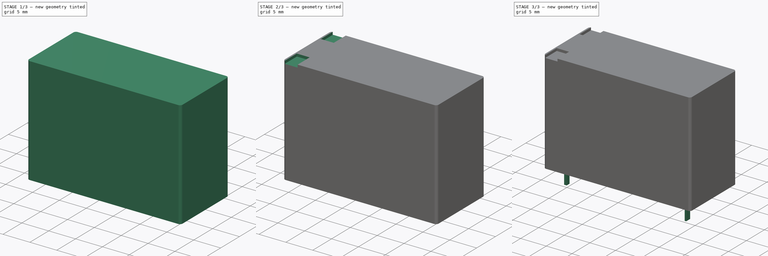
[diagram: build sequence overview — one tinted view per stage of 3, left to right]
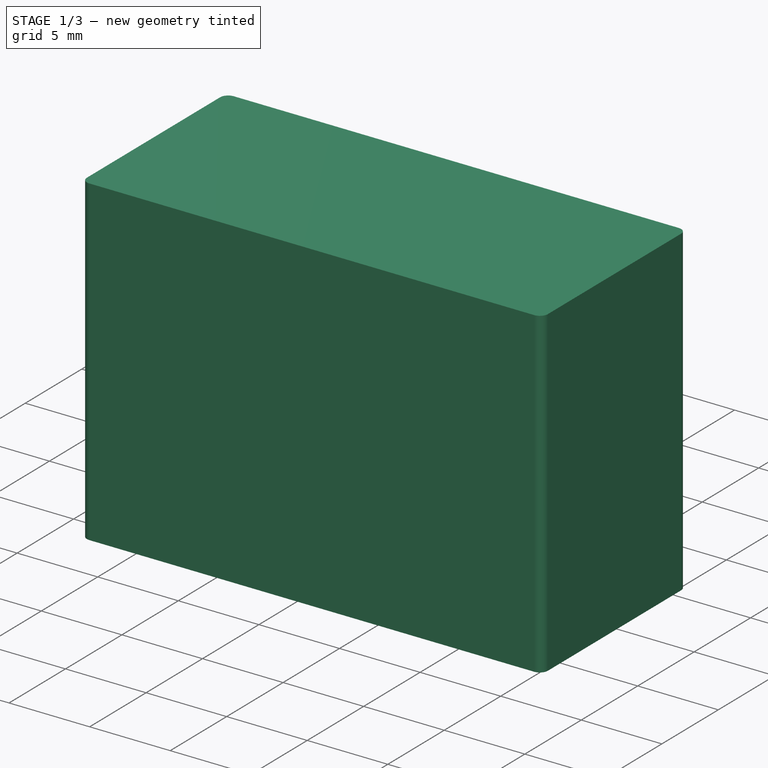
[diagram: stage 1 of 3 — iso view after this stage's code; geometry added in this stage tinted green]
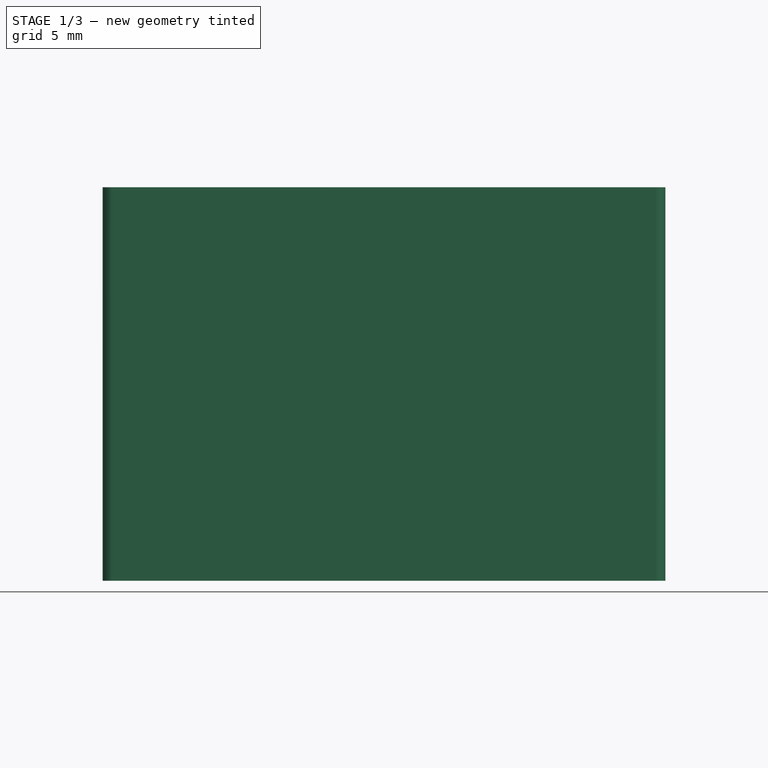
[diagram: stage 1 of 3 — front view after this stage's code; geometry added in this stage tinted green]
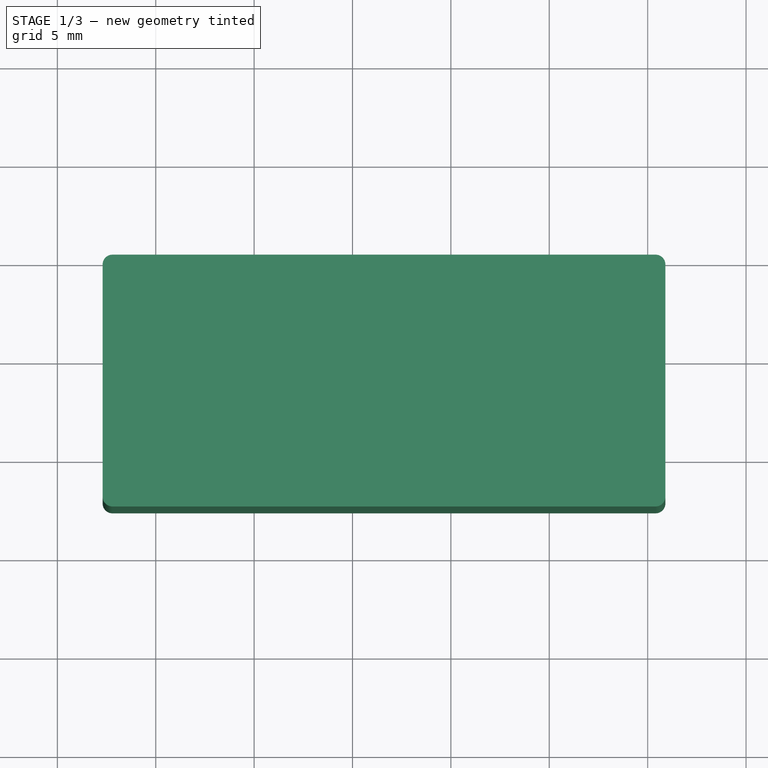
[diagram: stage 1 of 3 — top view after this stage's code; geometry added in this stage tinted green]
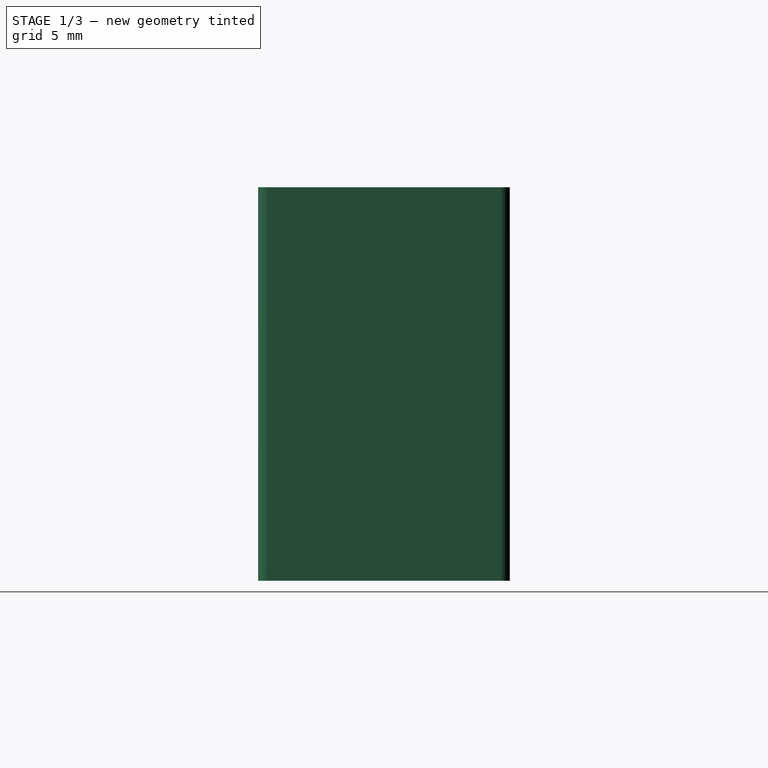
[diagram: stage 1 of 3 — right view after this stage's code; geometry added in this stage tinted green]
FCSTD DOCUMENT  (FreeCAD 0.16R6712 (Git))
Label: Relay_SPST_Panasonic_JW1_FormA
License: All rights reserved
LicenseURL: http://en.wikipedia.org/wiki/All_rights_reserved
objects: Sketcher::SketchObject×3, Part::Feature×3, PartDesign::Pad×2, App::DocumentObjectGroup×1, PartDesign::Fillet×1, PartDesign::Pocket×1, Part::MultiFuse×1
note: 14 computed .brp shape members not serialized (recipe doc carries the construction recipe); baked Part::Feature solids carry a one-line shape summary decoded from their .brp

FEATURE [Part::Feature] FusionAxisZ1  label="Z"
  shape: bbox 0.8 x 0.8 x 14 mm, 8 faces (baked)
FEATURE [Part::Feature] FusionAxisY1  label="Y"
  Placement = pos=(0,0,0.05) rot=(-1,0,0;1.5708rad)
  shape: bbox 0.8 x 14 x 0.8 mm, 8 faces (baked)
FEATURE [Part::Feature] FusionAxisX1  label="X"
  Placement = pos=(0,-0.05,0) rot=(0,1,0;1.5708rad)
  shape: bbox 14 x 0.8 x 0.8 mm, 8 faces (baked)
FEATURE [App::DocumentObjectGroup] axis
  Group = -> [FusionAxisZ1,FusionAxisY1,FusionAxisX1]
FEATURE [Sketcher::SketchObject] Sketch001
  expr: Constraints[11] = 28.6 - 23.5 - 2.4
  expr: Constraints[8] = (12.8 - 7.6) / 2
  sketch-geometry (4):
    g0: LineSegment StartX=-2.7 StartY=-2.6 StartZ=0 EndX=25.9 EndY=-2.6 EndZ=0
    g1: LineSegment StartX=25.9 StartY=-2.6 StartZ=0 EndX=25.9 EndY=10.2 EndZ=0
    g2: LineSegment StartX=25.9 StartY=10.2 StartZ=0 EndX=-2.7 EndY=10.2 EndZ=0
    g3: LineSegment StartX=-2.7 StartY=10.2 StartZ=0 EndX=-2.7 EndY=-2.6 EndZ=0
  constraints (12):
    c: Coincident(g0,g1)
    c: Coincident(g1,g2)
    c: Coincident(g2,g3)
    c: Coincident(g3,g0)
    c: Horizontal(g0)
    c: Horizontal(g2)
    c: Vertical(g1)
    c: Vertical(g3)
    c: DistanceY(g0,g-1) = 2.6
    c: DistanceY(g3,g3) = 12.8
    c: DistanceX(g2,g2) = 28.6
    c: DistanceX(g0,g-1) = 2.7
FEATURE [PartDesign::Pad] Pad001
  Length = 20
  Length2 = 100
  Sketch = -> Sketch001
  Type = 0
FEATURE [PartDesign::Fillet] Fillet
  Base = -> Pad001 [Edge5,Edge2,Edge1,Edge8]
  Radius = 0.5
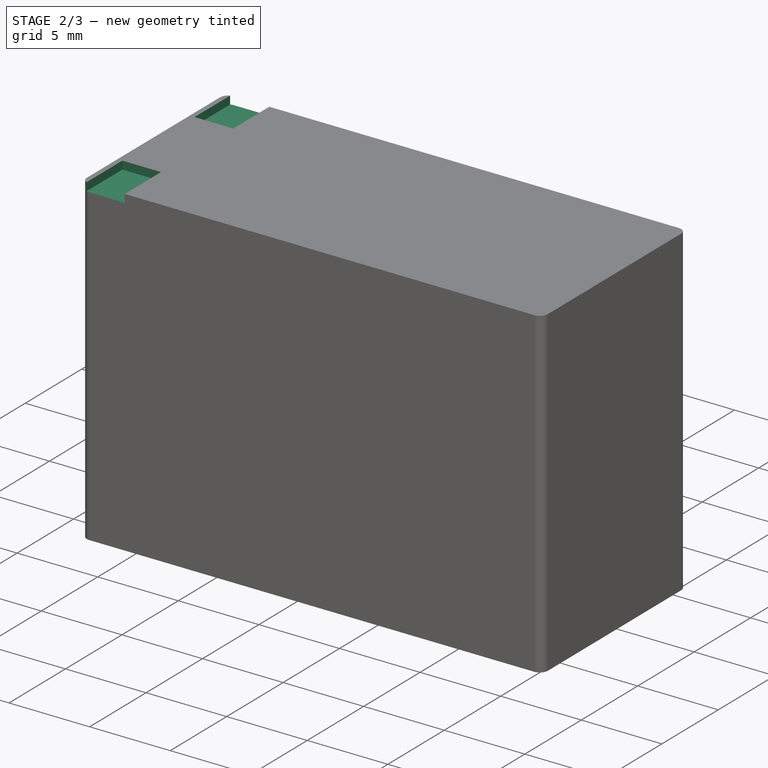
[diagram: stage 2 of 3 — iso view after this stage's code; geometry added in this stage tinted green]
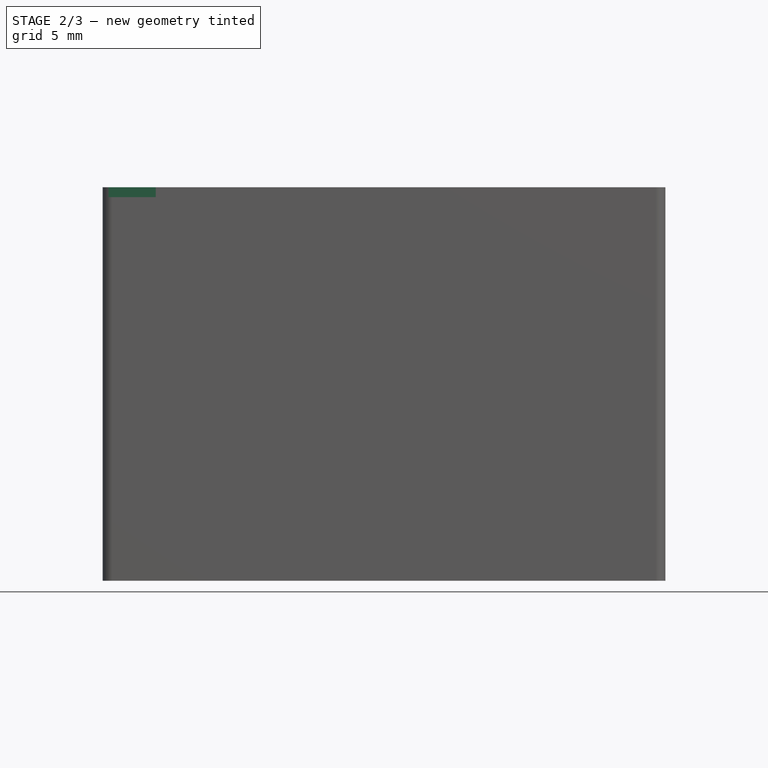
[diagram: stage 2 of 3 — front view after this stage's code; geometry added in this stage tinted green]
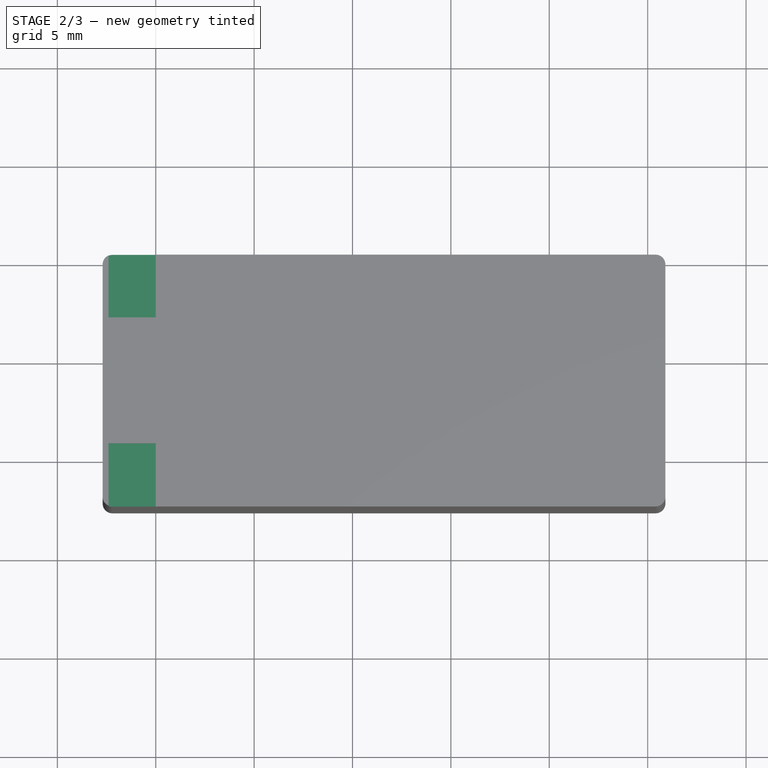
[diagram: stage 2 of 3 — top view after this stage's code; geometry added in this stage tinted green]
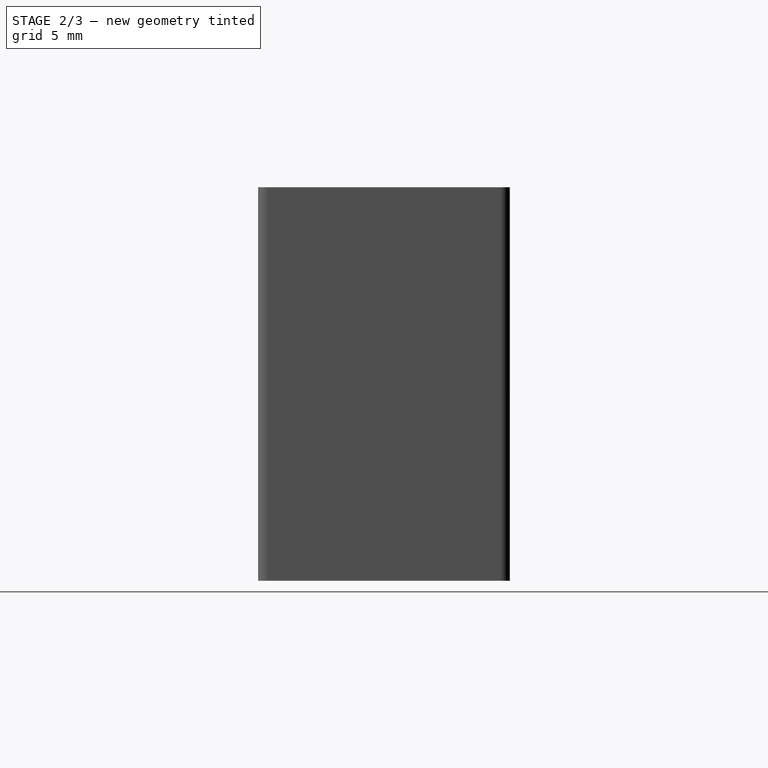
[diagram: stage 2 of 3 — right view after this stage's code; geometry added in this stage tinted green]
FEATURE [Sketcher::SketchObject] Sketch002
  ExternalGeometry = -> [Fillet]
  Placement = pos=(0,0,20) rot=(0,0,1;0rad)
  Support = -> Fillet [Face5]
  expr: Constraints[21] = 12.8 / 2
  sketch-geometry (8):
    g0: LineSegment StartX=-2.4 StartY=10.22 StartZ=0 EndX=0 EndY=10.22 EndZ=0
    g1: LineSegment StartX=0 StartY=10.22 StartZ=0 EndX=0 EndY=7.01 EndZ=0
    g2: LineSegment StartX=0 StartY=7.01 StartZ=0 EndX=-2.4 EndY=7.01 EndZ=0
    g3: LineSegment StartX=-2.4 StartY=7.01 StartZ=0 EndX=-2.4 EndY=10.22 EndZ=0
    g4: LineSegment StartX=-2.4 StartY=-2.6 StartZ=0 EndX=0 EndY=-2.6 EndZ=0
    g5: LineSegment StartX=0 StartY=-2.6 StartZ=0 EndX=0 EndY=0.61 EndZ=0
    g6: LineSegment StartX=0 StartY=0.61 StartZ=0 EndX=-2.4 EndY=0.61 EndZ=0
    g7: LineSegment StartX=-2.4 StartY=0.61 StartZ=0 EndX=-2.4 EndY=-2.6 EndZ=0
  constraints (24):
    c: Coincident(g0,g1)
    c: Coincident(g1,g2)
    c: Coincident(g2,g3)
    c: Coincident(g3,g0)
    c: Horizontal(g0)
    c: Horizontal(g2)
    c: Vertical(g1)
    c: Vertical(g3)
    c: PointOnObject(g1,g-2)
    c: Coincident(g4,g5)
    c: Coincident(g5,g6)
    c: Coincident(g6,g7)
    c: Coincident(g7,g4)
    c: Horizontal(g4)
    c: Horizontal(g6)
    c: Vertical(g5)
    c: Vertical(g7)
    c: PointOnObject(g5,g-2)
    c: Equal(g7,g3)
    c: Equal(g0,g6)
    c: DistanceY(g4,g0) = 12.82
    c: DistanceY(g6,g2) = 6.4
    c: DistanceX(g4,g4) = 2.4
    c: PointOnObject(g4,g-3)
FEATURE [PartDesign::Pocket] Pocket
  Length = 0.5
  Sketch = -> Sketch002
  Type = 0
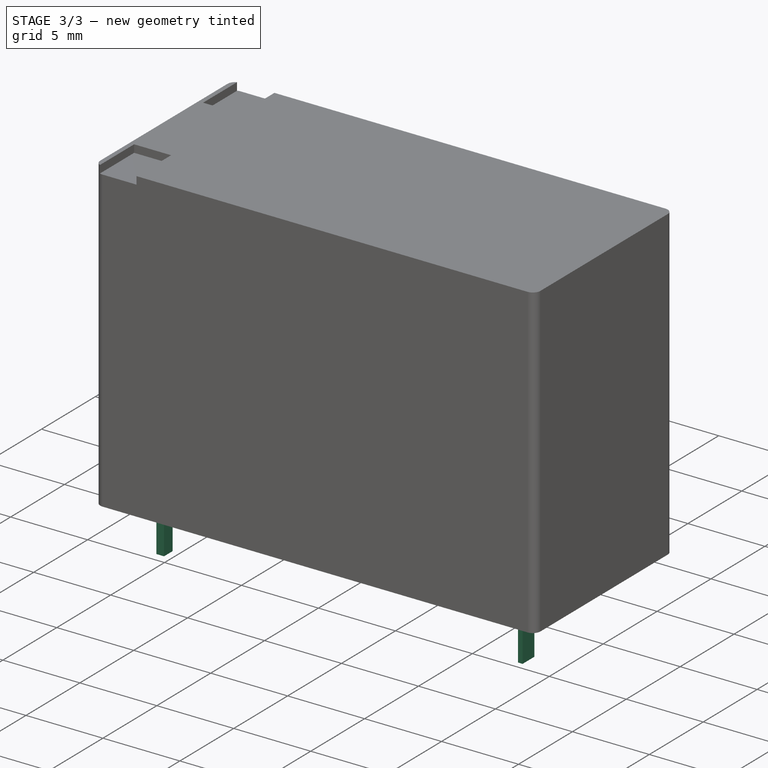
[diagram: stage 3 of 3 — iso view after this stage's code; geometry added in this stage tinted green]
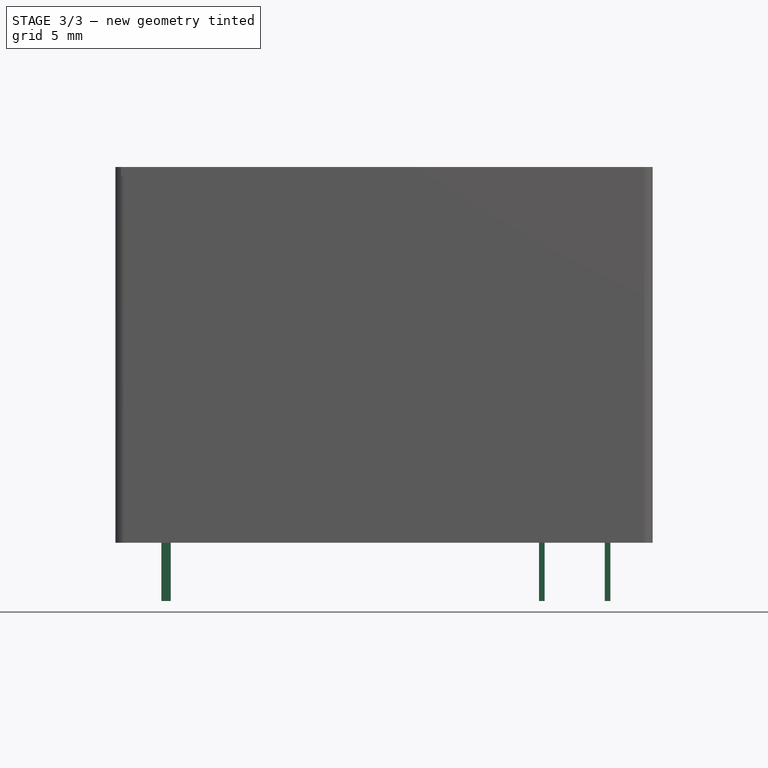
[diagram: stage 3 of 3 — front view after this stage's code; geometry added in this stage tinted green]
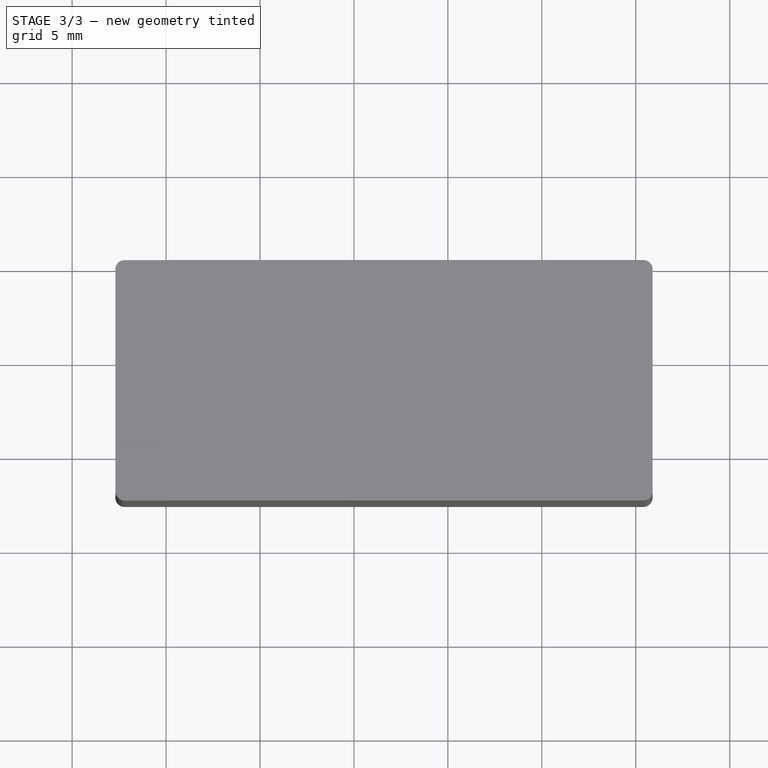
[diagram: stage 3 of 3 — top view after this stage's code; geometry added in this stage tinted green]
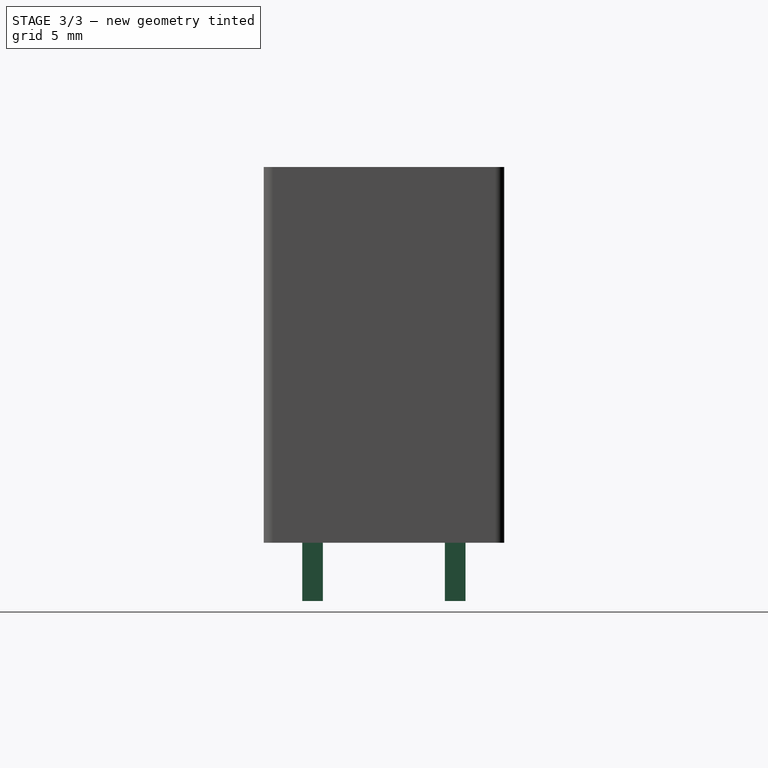
[diagram: stage 3 of 3 — right view after this stage's code; geometry added in this stage tinted green]
FEATURE [Sketcher::SketchObject] Sketch
  Placement = pos=(0,0,0.5) rot=(0,0,1;1.5708rad)
  sketch-geometry (24):
    g0: LineSegment StartX=-0.4 StartY=0.25 StartZ=0 EndX=0.4 EndY=0.25 EndZ=0
    g1: LineSegment StartX=0.4 StartY=0.25 StartZ=0 EndX=0.4 EndY=-0.25 EndZ=0
    g2: LineSegment StartX=0.4 StartY=-0.25 StartZ=0 EndX=-0.4 EndY=-0.25 EndZ=0
    g3: LineSegment StartX=-0.4 StartY=-0.25 StartZ=0 EndX=-0.4 EndY=0.25 EndZ=0
    g4: GeomPoint [constr] X=0 Y=0.25 Z=0
    g5: GeomPoint [constr] X=0.4 Y=0 Z=0
    g6: LineSegment StartX=7.2 StartY=0.25 StartZ=0 EndX=8 EndY=0.25 EndZ=0
    g7: LineSegment StartX=8 StartY=0.25 StartZ=0 EndX=8 EndY=-0.25 EndZ=0
    g8: LineSegment StartX=8 StartY=-0.25 StartZ=0 EndX=7.2 EndY=-0.25 EndZ=0
    g9: LineSegment StartX=7.2 StartY=-0.25 StartZ=0 EndX=7.2 EndY=0.25 EndZ=0
    g10: LineSegment [constr] StartX=-0.4 StartY=0 StartZ=0 EndX=7.2 EndY=0 EndZ=0
    g11: LineSegment StartX=7.03698 StartY=-19.85 StartZ=0 EndX=8.13698 EndY=-19.85 EndZ=0
    g12: LineSegment StartX=8.13698 StartY=-19.85 StartZ=0 EndX=8.13698 EndY=-20.15 EndZ=0
    g13: LineSegment StartX=8.13698 StartY=-20.15 StartZ=0 EndX=7.03698 EndY=-20.15 EndZ=0
    g14: LineSegment StartX=7.03698 StartY=-20.15 StartZ=0 EndX=7.03698 EndY=-19.85 EndZ=0
    g15: LineSegment [constr] StartX=-0.563015 StartY=-20 StartZ=0 EndX=7.03698 EndY=-20 EndZ=0
    g16: LineSegment StartX=-0.55 StartY=-23.35 StartZ=0 EndX=0.55 EndY=-23.35 EndZ=0
    g17: LineSegment StartX=0.55 StartY=-23.35 StartZ=0 EndX=0.55 EndY=-23.65 EndZ=0
    g18: LineSegment StartX=0.55 StartY=-23.65 StartZ=0 EndX=-0.55 EndY=-23.65 EndZ=0
    g19: LineSegment StartX=-0.55 StartY=-23.65 StartZ=0 EndX=-0.55 EndY=-23.35 EndZ=0
    g20: LineSegment [constr] StartX=-0.55 StartY=-23.5 StartZ=0 EndX=7.05 EndY=-23.5 EndZ=0
    g21: LineSegment [constr] StartX=-0.55 StartY=-23.5 StartZ=0 EndX=-0.55 EndY=-20 EndZ=0
    g22: GeomPoint [constr] X=0 Y=-23.35 Z=0
    g23: LineSegment [constr] StartX=0 StartY=-20 StartZ=0 EndX=0 EndY=0 EndZ=0
  constraints (67):
    c: Coincident(g0,g1)
    c: Coincident(g1,g2)
    c: Coincident(g2,g3)
    c: Coincident(g3,g0)
    c: Horizontal(g0)
    c: Horizontal(g2)
    c: Vertical(g1)
    c: Vertical(g3)
    c: PointOnObject(g4,g0)
    c: PointOnObject(g5,g-1)
    c: Symmetric(g1,g1,g5)
    c: Symmetric(g0,g0,g4)
    c: PointOnObject(g4,g-2)
    c: DistanceY(g3,g3) = 0.5
    c: DistanceX(g0,g0) = 0.8
    c: Coincident(g6,g7)
    c: Coincident(g7,g8)
    c: Coincident(g8,g9)
    c: Coincident(g9,g6)
    c: Horizontal(g6)
    c: Horizontal(g8)
    c: Vertical(g7)
    c: Vertical(g9)
    c: PointOnObject(g10,g3)
    c: Horizontal(g10)
    c: Symmetric(g9,g9,g10)
    c: DistanceX(g10,g10) = 7.6
    c: Equal(g6,g0)
    c: Coincident(g11,g12)
    c: Coincident(g12,g13)
    c: Coincident(g13,g14)
    c: Coincident(g14,g11)
    c: Horizontal(g11)
    c: Horizontal(g13)
    c: Vertical(g12)
    c: Vertical(g14)
    c: Horizontal(g15)
    c: DistanceX(g15,g15) = 7.6
    c: Symmetric(g14,g14,g15)
    c: Equal(g7,g1)
    c: Coincident(g16,g17)
    c: Coincident(g17,g18)
    c: Coincident(g18,g19)
    c: Coincident(g19,g16)
    c: Horizontal(g16)
    c: Horizontal(g18)
    c: Vertical(g17)
    c: Vertical(g19)
    c: Horizontal(g20)
    c: Equal(g15,g20) = 7.62
    c: Coincident(g21,g20)
    c: Vertical(g21)
    c: DistanceY(g21,g21) = 3.5
    c: PointOnObject(g20,g19)
    c: Symmetric(g19,g19,g20)
    c: DistanceY(g14,g14) = 0.3
    c: DistanceX(g18,g18) = 1.1
    c: PointOnObject(g10,g-1)
    c: Symmetric(g16,g16,g22)
    c: PointOnObject(g22,g-2)
    c: PointOnObject(g23,g15)
    c: Coincident(g23,g-1)
    c: Vertical(g23)
    c: DistanceY(g23,g23) = 20
    c: Equal(g18,g13)
    c: Equal(g17,g12)
    c: PointOnObject(g21,g15)
FEATURE [PartDesign::Pad] Pad
  Length = 3.6
  Length2 = 100
  Placement = pos=(0,0,0.5) rot=(0,0,1;1.5708rad)
  Reversed = true
  Sketch = -> Sketch
  Type = 0
FEATURE [Part::MultiFuse] Pad_mp_cp  label="Relay_SPST_Panasonic_JW1_FormA"
  Shapes = -> [Pad,Pocket]
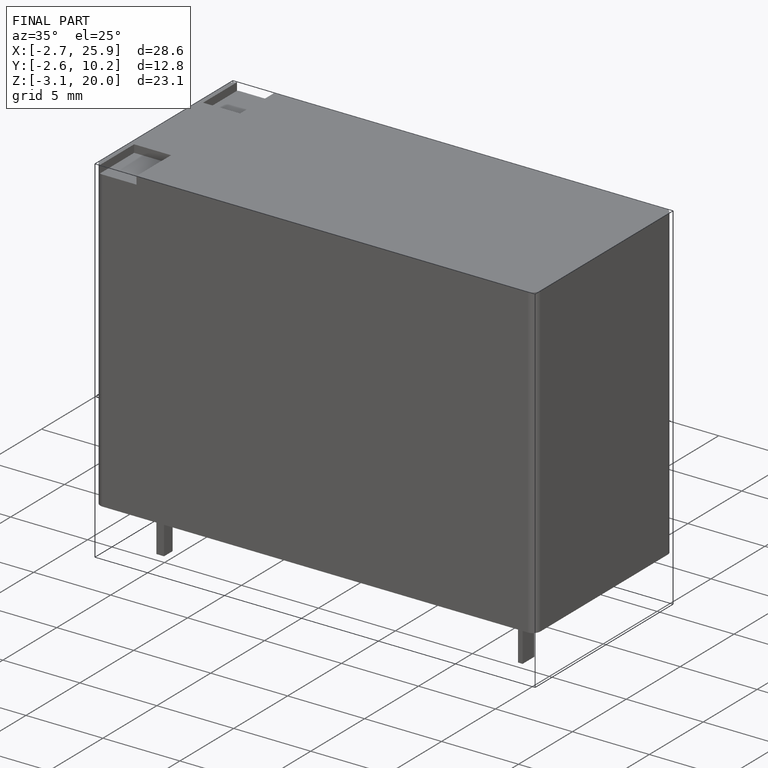
[diagram: finished part — iso view with bounding-box wireframe]
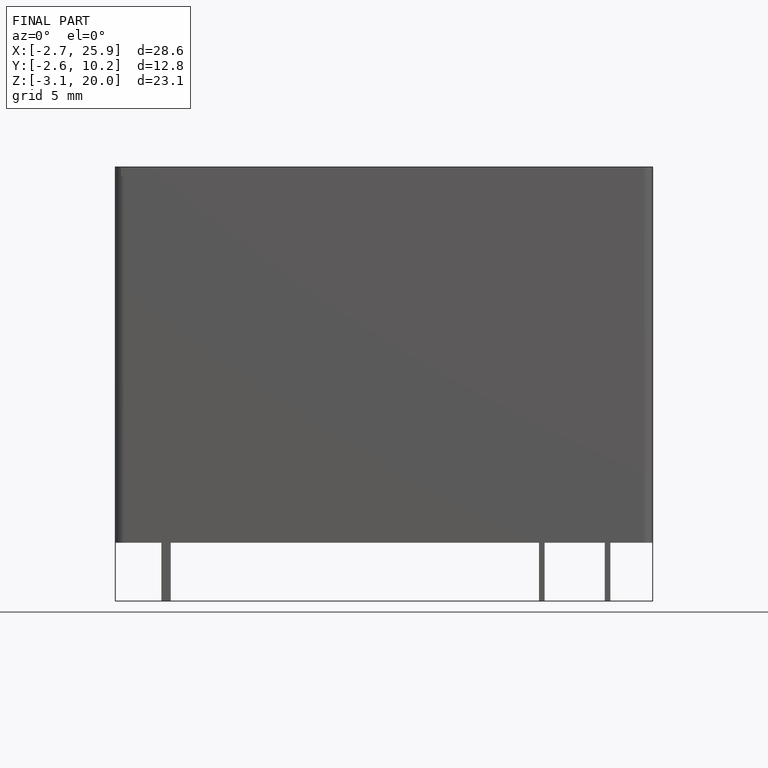
[diagram: finished part — front view with bounding-box wireframe]
